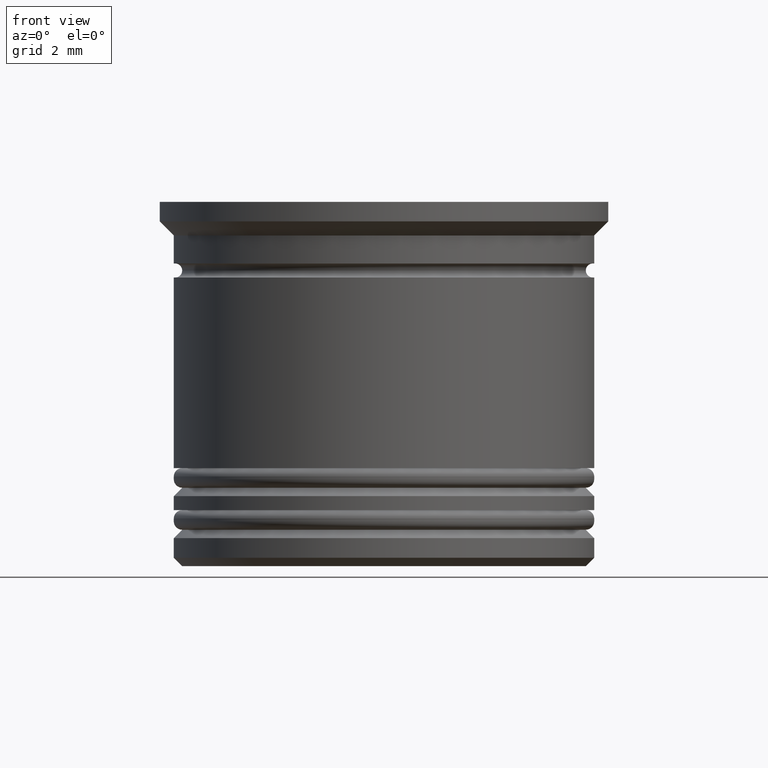
[diagram: clean part render]
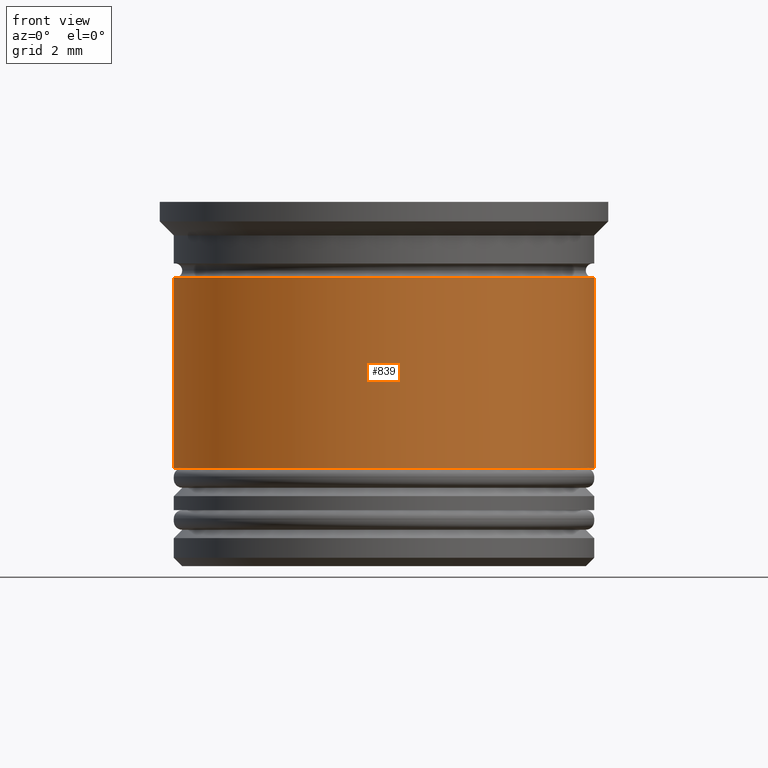
[diagram: same view with one face highlighted and labeled with its STEP entity id]
A machine part, front view. The second image highlights one B-rep face of the part: STEP entity #839.
In plain terms, the highlighted cylindrical surface (partial cylindrical patch) has radius 7.5 mm, axis along (-0, -0, 1).
Its self-contained STEP definition (entity closure, byte-faithful):
#79 = LINE ( 'NONE', #1937, #276 ) ;
#179 = EDGE_CURVE ( 'NONE', #832, #1589, #791, .T. ) ;
#214 = AXIS2_PLACEMENT_3D ( 'NONE', #675, #1771, #541 ) ;
#268 = CARTESIAN_POINT ( 'NONE',  ( 0.000000000000000000, 0.000000000000000000, 0.000000000000000000 ) ) ;
#276 = VECTOR ( 'NONE', #1792, 1000.000000000000000 ) ;
#506 = ORIENTED_EDGE ( 'NONE', *, *, #889, .T. ) ;
#518 = DIRECTION ( 'NONE',  ( -0.000000000000000000, -0.000000000000000000, 1.000000000000000000 ) ) ;
#531 = AXIS2_PLACEMENT_3D ( 'NONE', #268, #561, #1645 ) ;
#541 = DIRECTION ( 'NONE',  ( 1.000000000000000000, 0.000000000000000000, 0.000000000000000000 ) ) ;
#561 = DIRECTION ( 'NONE',  ( -0.000000000000000000, -0.000000000000000000, 1.000000000000000000 ) ) ;
#671 = DIRECTION ( 'NONE',  ( -0.000000000000000000, -0.000000000000000000, 1.000000000000000000 ) ) ;
#675 = CARTESIAN_POINT ( 'NONE',  ( 0.000000000000000000, 0.000000000000000000, -2.700000000000000178 ) ) ;
#680 = CARTESIAN_POINT ( 'NONE',  ( 0.000000000000000000, 0.000000000000000000, -9.500000000000000000 ) ) ;
#779 = EDGE_CURVE ( 'NONE', #1213, #1714, #79, .T. ) ;
#791 = LINE ( 'NONE', #1279, #1805 ) ;
#817 = ORIENTED_EDGE ( 'NONE', *, *, #179, .T. ) ;
#832 = VERTEX_POINT ( 'NONE', #1810 ) ;
#839 = ADVANCED_FACE ( 'NONE', ( #1781 ), #1198, .T. ) ;
#889 = EDGE_CURVE ( 'NONE', #1213, #832, #1573, .T. ) ;
#1198 = CYLINDRICAL_SURFACE ( 'NONE', #531, 7.500000000000000000 ) ;
#1213 = VERTEX_POINT ( 'NONE', #1942 ) ;
#1241 = ORIENTED_EDGE ( 'NONE', *, *, #1887, .F. ) ;
#1256 = ORIENTED_EDGE ( 'NONE', *, *, #779, .F. ) ;
#1277 = DIRECTION ( 'NONE',  ( 1.000000000000000000, 0.000000000000000000, 0.000000000000000000 ) ) ;
#1279 = CARTESIAN_POINT ( 'NONE',  ( 7.500000000000000000, 0.000000000000000000, 0.000000000000000000 ) ) ;
#1381 = CARTESIAN_POINT ( 'NONE',  ( 7.499999999999998224, 0.000000000000000000, -2.700000000000000178 ) ) ;
#1573 = CIRCLE ( 'NONE', #1854, 7.500000000000001776 ) ;
#1589 = VERTEX_POINT ( 'NONE', #1381 ) ;
#1606 = CARTESIAN_POINT ( 'NONE',  ( -7.499999999999998224, 9.184850993605145972E-16, -2.700000000000000178 ) ) ;
#1645 = DIRECTION ( 'NONE',  ( 1.000000000000000000, 0.000000000000000000, 0.000000000000000000 ) ) ;
#1714 = VERTEX_POINT ( 'NONE', #1606 ) ;
#1769 = CIRCLE ( 'NONE', #214, 7.499999999999998224 ) ;
#1771 = DIRECTION ( 'NONE',  ( -0.000000000000000000, -0.000000000000000000, 1.000000000000000000 ) ) ;
#1781 = FACE_OUTER_BOUND ( 'NONE', #1845, .T. ) ;
#1792 = DIRECTION ( 'NONE',  ( -0.000000000000000000, -0.000000000000000000, 1.000000000000000000 ) ) ;
#1805 = VECTOR ( 'NONE', #671, 1000.000000000000000 ) ;
#1810 = CARTESIAN_POINT ( 'NONE',  ( 7.500000000000001776, 0.000000000000000000, -9.500000000000000000 ) ) ;
#1845 = EDGE_LOOP ( 'NONE', ( #1256, #506, #817, #1241 ) ) ;
#1854 = AXIS2_PLACEMENT_3D ( 'NONE', #680, #518, #1277 ) ;
#1887 = EDGE_CURVE ( 'NONE', #1714, #1589, #1769, .T. ) ;
#1937 = CARTESIAN_POINT ( 'NONE',  ( -7.500000000000000000, 9.184850993605147944E-16, 0.000000000000000000 ) ) ;
#1942 = CARTESIAN_POINT ( 'NONE',  ( -7.500000000000001776, 9.184850993605149917E-16, -9.500000000000000000 ) ) ;